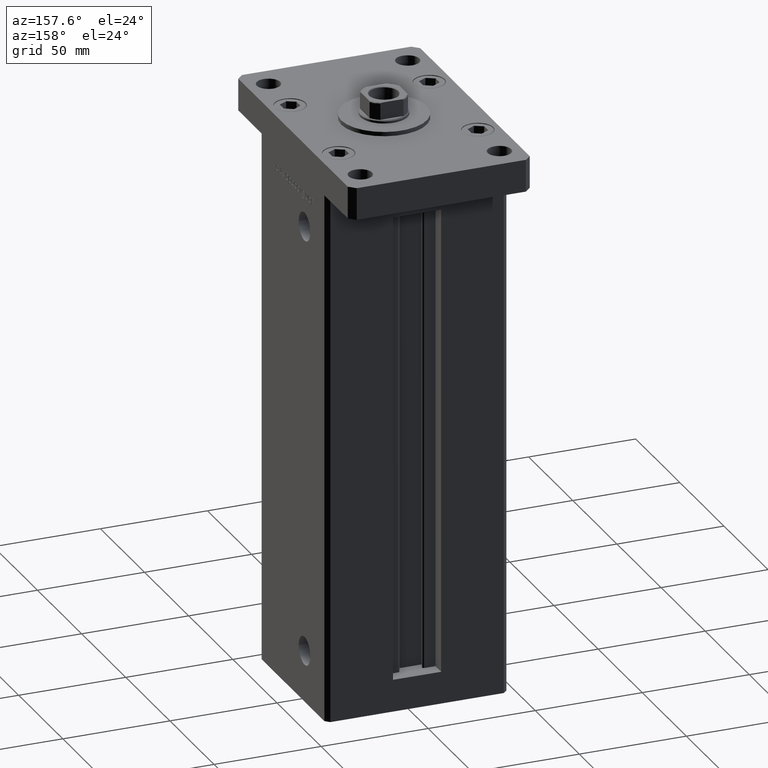
[diagram: clean part render]
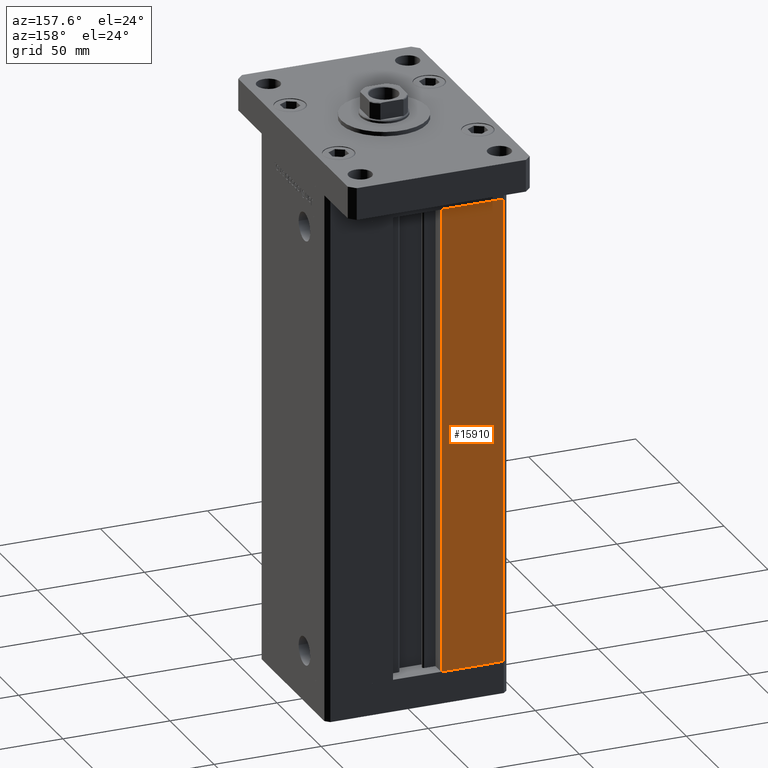
[diagram: same view with one face highlighted and labeled with its STEP entity id]
A machine part, auxiliary view. The second image highlights one B-rep face of the part: STEP entity #15910.
In plain terms, the highlighted planar face has unit normal (-0, -1, 0).
Its self-contained STEP definition (entity closure, byte-faithful):
#1416 = PLANE ( 'NONE',  #43634 ) ;
#1911 = VECTOR ( 'NONE', #45641, 1000.000000000000000 ) ;
#3099 = LINE ( 'NONE', #15800, #45306 ) ;
#3369 = ORIENTED_EDGE ( 'NONE', *, *, #11269, .F. ) ;
#4637 = DIRECTION ( 'NONE',  ( 1.000000000000000000, 0.000000000000000000, 0.000000000000000000 ) ) ;
#9272 = DIRECTION ( 'NONE',  ( 1.000000000000000000, -2.372271420139223824E-16, 0.000000000000000000 ) ) ;
#11269 = EDGE_CURVE ( 'NONE', #28274, #17167, #21230, .T. ) ;
#13189 = CARTESIAN_POINT ( 'NONE',  ( -40.50000000000000000, 37.50000000000000711, 218.5000000000000000 ) ) ;
#15800 = CARTESIAN_POINT ( 'NONE',  ( -11.25000000000000000, 37.50000000000000000, 0.000000000000000000 ) ) ;
#15887 = DIRECTION ( 'NONE',  ( -0.000000000000000000, -0.000000000000000000, 1.000000000000000000 ) ) ;
#15910 = ADVANCED_FACE ( 'NONE', ( #25514 ), #1416, .F. ) ;
#17167 = VERTEX_POINT ( 'NONE', #52028 ) ;
#17484 = VERTEX_POINT ( 'NONE', #50261 ) ;
#19524 = ORIENTED_EDGE ( 'NONE', *, *, #38091, .T. ) ;
#19807 = CARTESIAN_POINT ( 'NONE',  ( -11.25000000000000000, 37.50000000000000000, 0.000000000000000000 ) ) ;
#19866 = EDGE_CURVE ( 'NONE', #30549, #17167, #3099, .T. ) ;
#21230 = LINE ( 'NONE', #29894, #1911 ) ;
#21902 = EDGE_LOOP ( 'NONE', ( #19524, #30733, #36412, #3369 ) ) ;
#24021 = CARTESIAN_POINT ( 'NONE',  ( -11.25000000000000000, 37.50000000000000000, 0.000000000000000000 ) ) ;
#25514 = FACE_OUTER_BOUND ( 'NONE', #21902, .T. ) ;
#28274 = VERTEX_POINT ( 'NONE', #13189 ) ;
#28275 = DIRECTION ( 'NONE',  ( -1.000000000000000000, 2.372271420139223331E-16, 0.000000000000000000 ) ) ;
#29413 = VECTOR ( 'NONE', #15887, 1000.000000000000000 ) ;
#29894 = CARTESIAN_POINT ( 'NONE',  ( -40.50000000000000000, 37.50000000000000711, 218.5000000000000000 ) ) ;
#30549 = VERTEX_POINT ( 'NONE', #19807 ) ;
#30733 = ORIENTED_EDGE ( 'NONE', *, *, #39605, .F. ) ;
#32812 = CARTESIAN_POINT ( 'NONE',  ( -11.25000000000000000, 37.50000000000000000, 218.5000000000000000 ) ) ;
#36412 = ORIENTED_EDGE ( 'NONE', *, *, #19866, .T. ) ;
#38091 = EDGE_CURVE ( 'NONE', #28274, #17484, #45833, .T. ) ;
#39605 = EDGE_CURVE ( 'NONE', #30549, #17484, #44658, .T. ) ;
#39823 = VECTOR ( 'NONE', #4637, 1000.000000000000000 ) ;
#43634 = AXIS2_PLACEMENT_3D ( 'NONE', #45869, #50214, #9272 ) ;
#44658 = LINE ( 'NONE', #24021, #29413 ) ;
#45306 = VECTOR ( 'NONE', #28275, 1000.000000000000000 ) ;
#45641 = DIRECTION ( 'NONE',  ( -0.000000000000000000, -0.000000000000000000, -1.000000000000000000 ) ) ;
#45833 = LINE ( 'NONE', #32812, #39823 ) ;
#45869 = CARTESIAN_POINT ( 'NONE',  ( -11.25000000000000000, 37.50000000000000000, 218.5000000000000000 ) ) ;
#50214 = DIRECTION ( 'NONE',  ( -2.372271420139223824E-16, -1.000000000000000000, 0.000000000000000000 ) ) ;
#50261 = CARTESIAN_POINT ( 'NONE',  ( -11.25000000000000000, 37.50000000000000000, 218.5000000000000000 ) ) ;
#52028 = CARTESIAN_POINT ( 'NONE',  ( -40.50000000000000000, 37.50000000000000711, 0.000000000000000000 ) ) ;